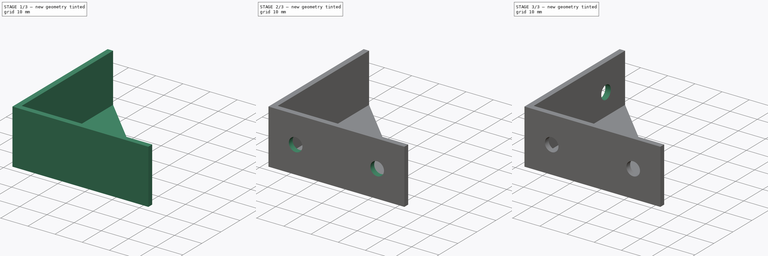
[diagram: build sequence overview — one tinted view per stage of 3, left to right]
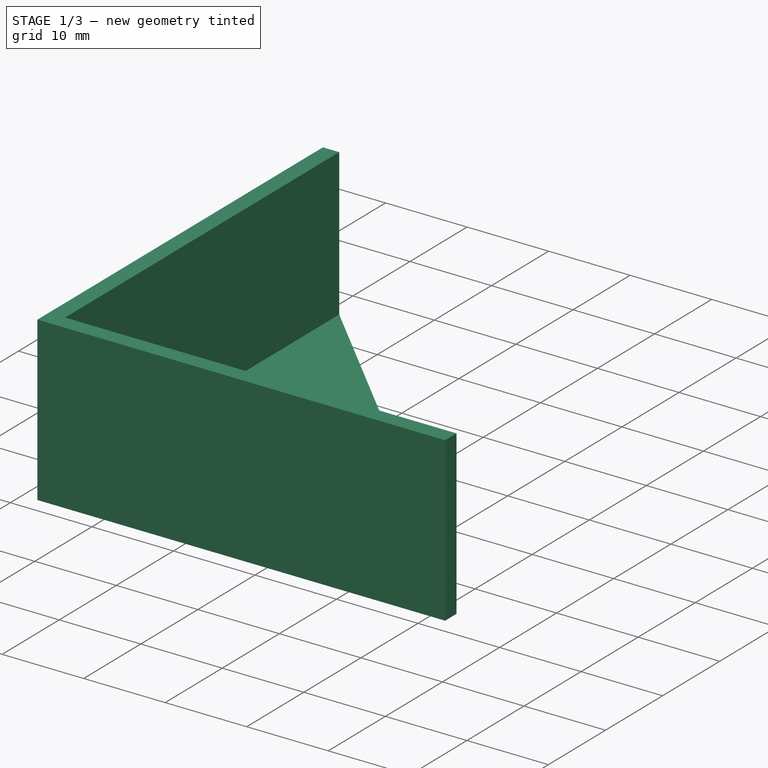
[diagram: stage 1 of 3 — iso view after this stage's code; geometry added in this stage tinted green]
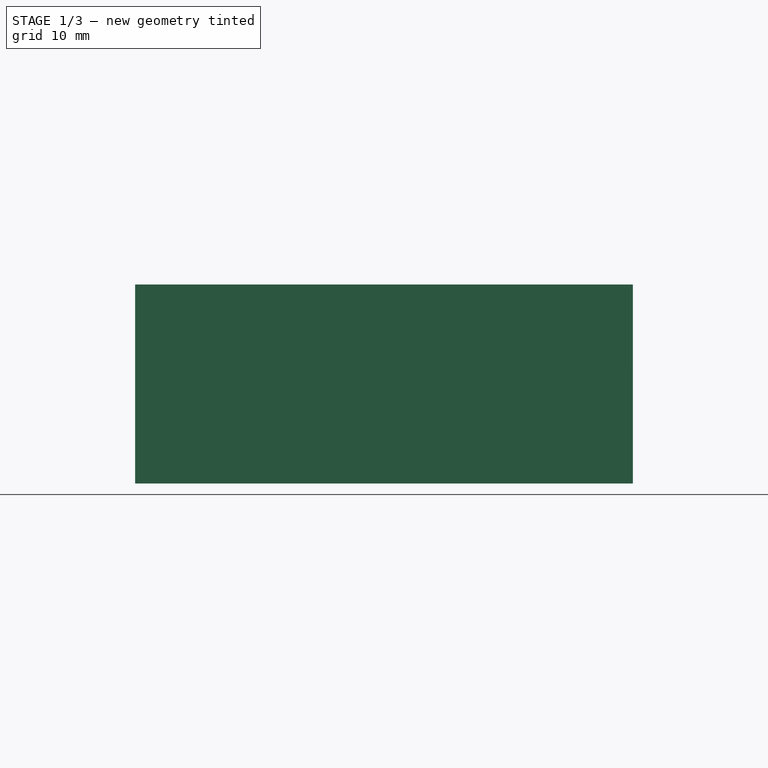
[diagram: stage 1 of 3 — front view after this stage's code; geometry added in this stage tinted green]
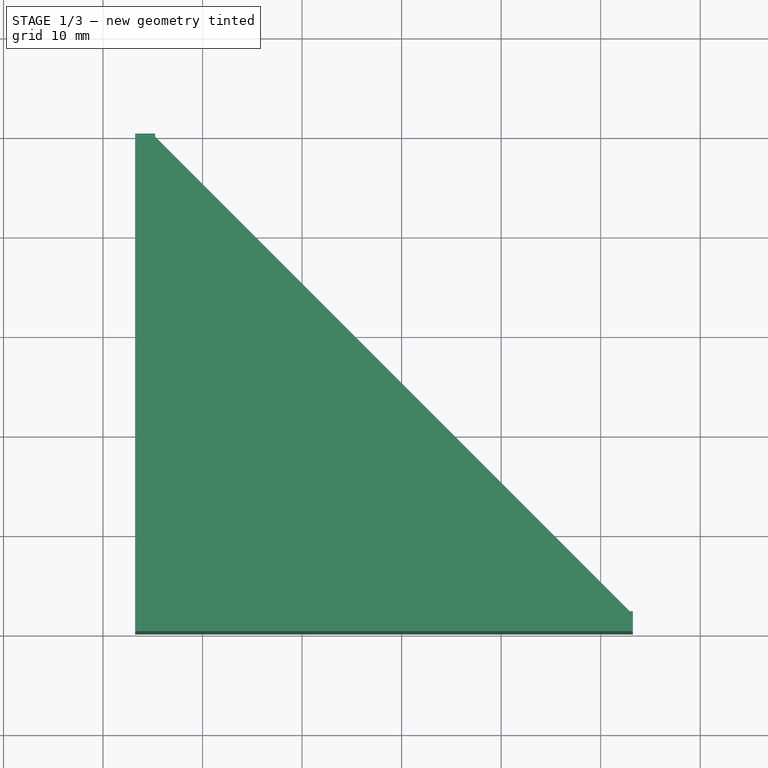
[diagram: stage 1 of 3 — top view after this stage's code; geometry added in this stage tinted green]
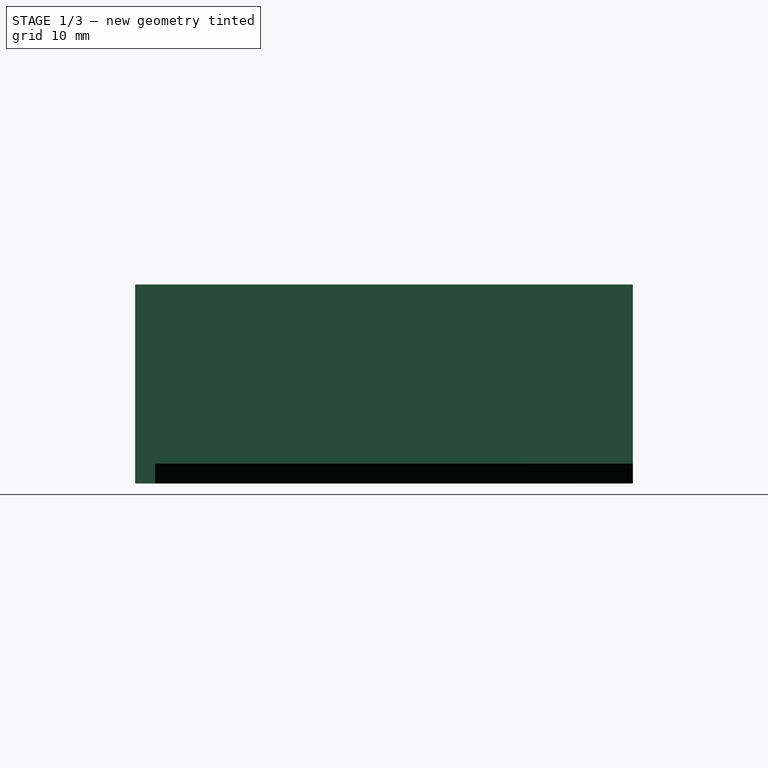
[diagram: stage 1 of 3 — right view after this stage's code; geometry added in this stage tinted green]
FCSTD DOCUMENT  (FreeCAD 0.16R6704 (Git))
Label: squadretta50x50
License: All rights reserved
LicenseURL: http://it.wikipedia.org/wiki/<copyright redacted>
objects: Sketcher::SketchObject×4, PartDesign::Pocket×3, PartDesign::Pad×1, PartDesign::PolarPattern×1
note: 13 computed .brp shape members not serialized (recipe doc carries the construction recipe); baked Part::Feature solids carry a one-line shape summary decoded from their .brp

FEATURE [Sketcher::SketchObject] Sketch
  Placement = pos=(3.22991,0.14043,0) rot=(0,0,1;0rad)
  sketch-geometry (5):
    g0: LineSegment StartX=0 StartY=0 StartZ=0 EndX=50 EndY=0 EndZ=0
    g1: LineSegment StartX=50 StartY=0 StartZ=0 EndX=50 EndY=2 EndZ=0
    g2: LineSegment StartX=50 StartY=2 StartZ=0 EndX=2 EndY=50 EndZ=0
    g3: LineSegment StartX=2 StartY=50 StartZ=0 EndX=0 EndY=50 EndZ=0
    g4: LineSegment StartX=0 StartY=50 StartZ=0 EndX=0 EndY=0 EndZ=0
  constraints (14):
    c: Coincident(g-1,g0)
    c: Horizontal(g0)
    c: Coincident(g0,g1)
    c: Vertical(g1)
    c: Coincident(g1,g2)
    c: Coincident(g2,g3)
    c: Horizontal(g3)
    c: Coincident(g3,g4)
    c: Coincident(g4,g0)
    c: Vertical(g4)
    c: Equal(g0,g4)
    c: DistanceX(g0,g0) = 50
    c: Equal(g1,g3)
    c: DistanceX(g3,g3) = 2
FEATURE [PartDesign::Pad] Pad
  Length = 20
  Length2 = 100
  Placement = pos=(3.22991,0.14043,0) rot=(0,0,1;0rad)
  Sketch = -> Sketch
  Type = 0
FEATURE [Sketcher::SketchObject] Sketch001
  ExternalGeometry = -> [Pad]
  Placement = pos=(3.22991,0.14043,20) rot=(0,0,1;0rad)
  Support = -> Pad [Face7]
  sketch-geometry (3):
    g0: LineSegment StartX=2 StartY=50 StartZ=0 EndX=2 EndY=2 EndZ=0
    g1: LineSegment StartX=2 StartY=2 StartZ=0 EndX=50 EndY=2 EndZ=0
    g2: LineSegment StartX=50 StartY=2 StartZ=0 EndX=2 EndY=50 EndZ=0
  constraints (7):
    c: Coincident(g-3,g0)
    c: Vertical(g0)
    c: Coincident(g0,g1)
    c: Coincident(g1,g-3)
    c: Coincident(g1,g2)
    c: Coincident(g2,g0)
    c: Horizontal(g1)
FEATURE [PartDesign::Pocket] Pocket
  Length = 18
  Placement = pos=(3.22991,0.14043,0) rot=(0,0,1;0rad)
  Sketch = -> Sketch001
  Type = 0
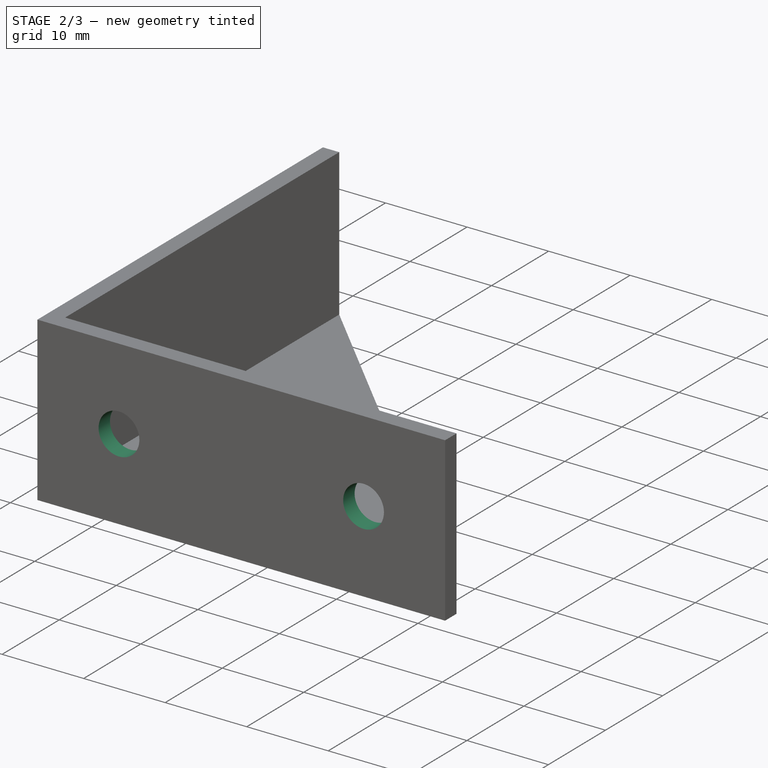
[diagram: stage 2 of 3 — iso view after this stage's code; geometry added in this stage tinted green]
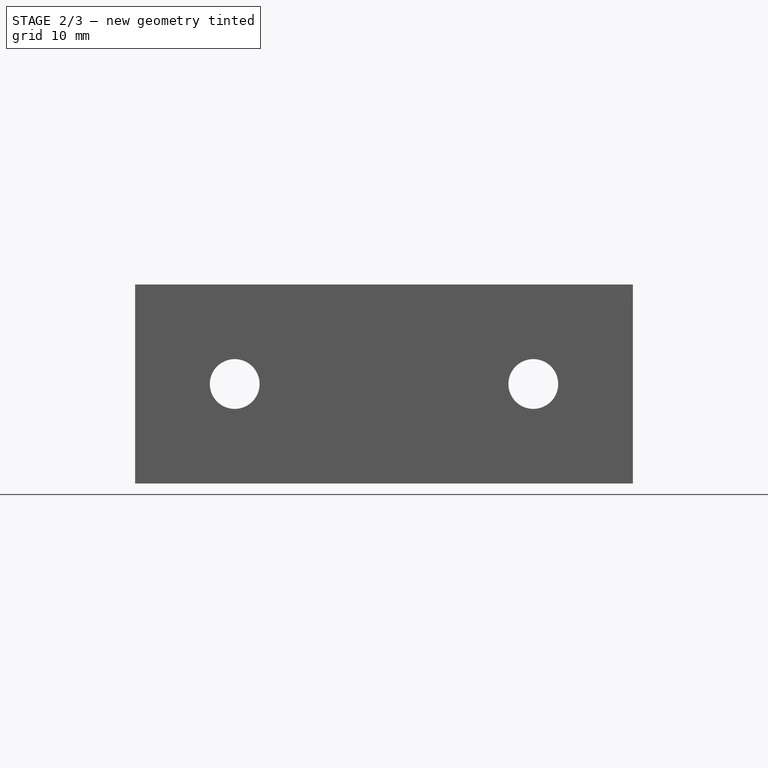
[diagram: stage 2 of 3 — front view after this stage's code; geometry added in this stage tinted green]
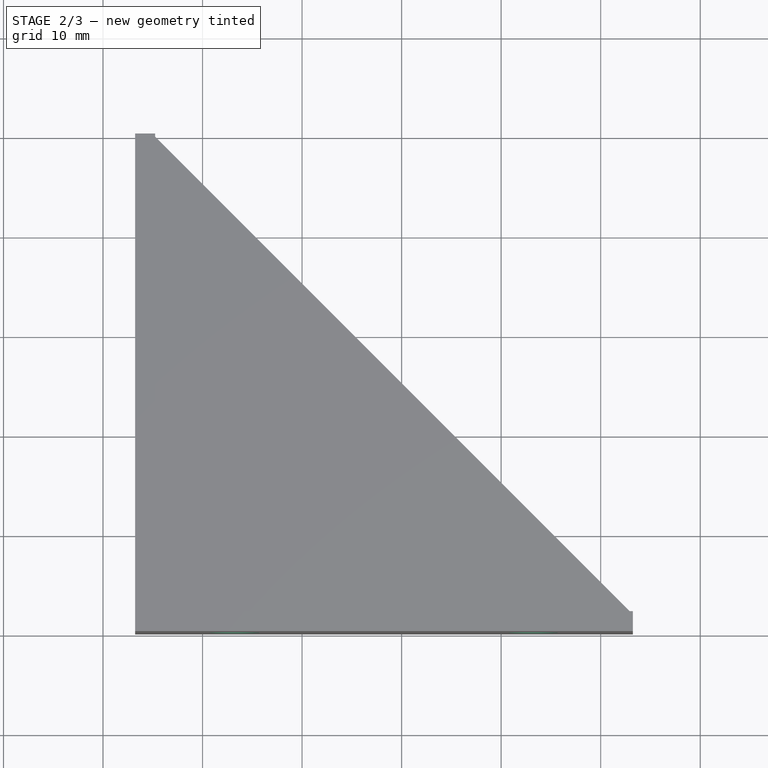
[diagram: stage 2 of 3 — top view after this stage's code; geometry added in this stage tinted green]
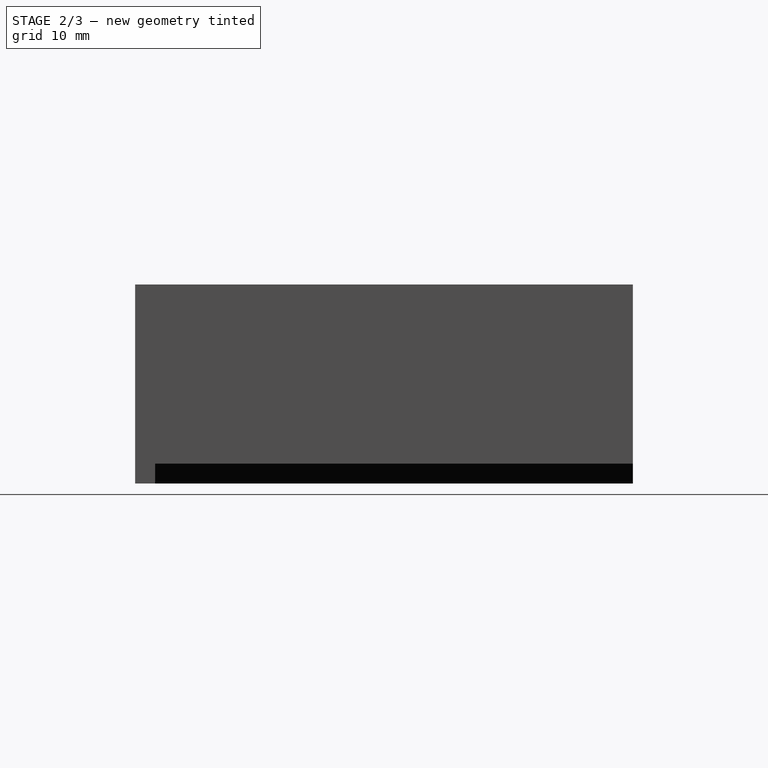
[diagram: stage 2 of 3 — right view after this stage's code; geometry added in this stage tinted green]
FEATURE [Sketcher::SketchObject] Sketch002
  ExternalGeometry = -> [Pocket]
  Placement = pos=(3.22991,0.14043,0) rot=(1,0,0;1.5708rad)
  Support = -> Pocket [Face1]
  sketch-geometry (3):
    g0: Circle CenterX=10 CenterY=10 CenterZ=0 NormalX=0 NormalY=0 NormalZ=1 Radius=2.5
    g1: Circle CenterX=40 CenterY=10 CenterZ=0 NormalX=0 NormalY=0 NormalZ=1 Radius=2.5
    g2: LineSegment [constr] StartX=0 StartY=10 StartZ=0 EndX=55 EndY=10 EndZ=0
  constraints (10):
    c: Radius(g0) = 2.5
    c: Equal(g0,g1)
    c: PointOnObject(g2,g-2)
    c: Horizontal(g2)
    c: DistanceX(g2) = 55
    c: PointOnObject(g0,g2)
    c: PointOnObject(g1,g2)
    c: Symmetric(g-1,g-3,g2)
    c: DistanceX(g0) = 10
    c: DistanceX(g0,g1) = 30
FEATURE [PartDesign::Pocket] Pocket001
  Length = 7
  Midplane = true
  Placement = pos=(3.22991,0.14043,0) rot=(0,0,1;0rad)
  Sketch = -> Sketch002
  Type = 0
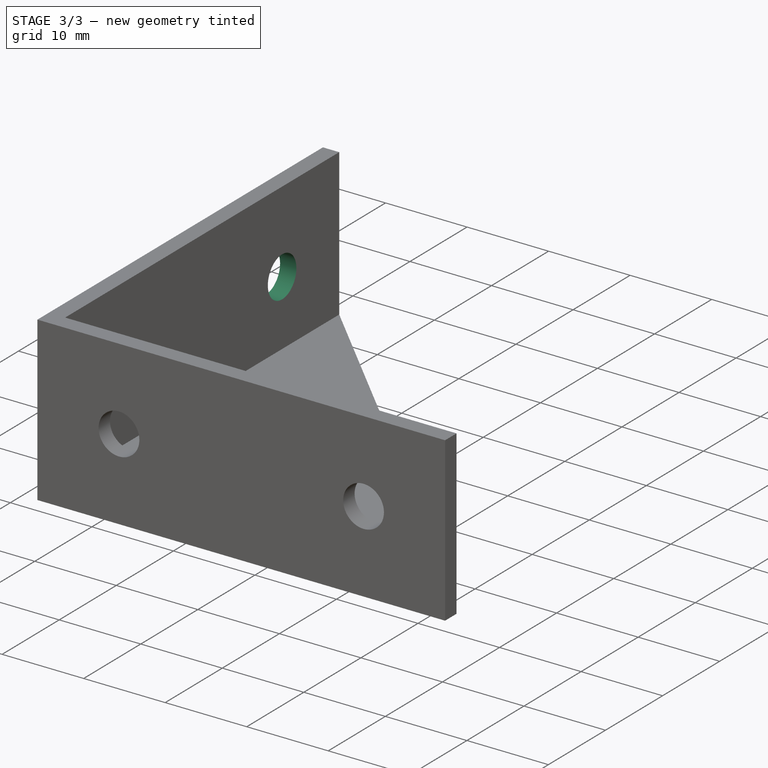
[diagram: stage 3 of 3 — iso view after this stage's code; geometry added in this stage tinted green]
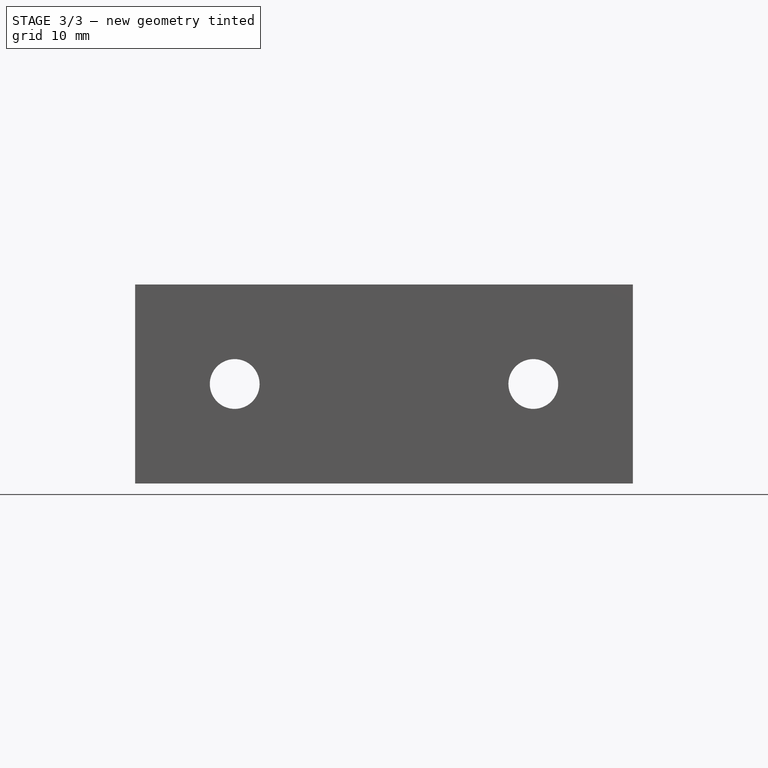
[diagram: stage 3 of 3 — front view after this stage's code; geometry added in this stage tinted green]
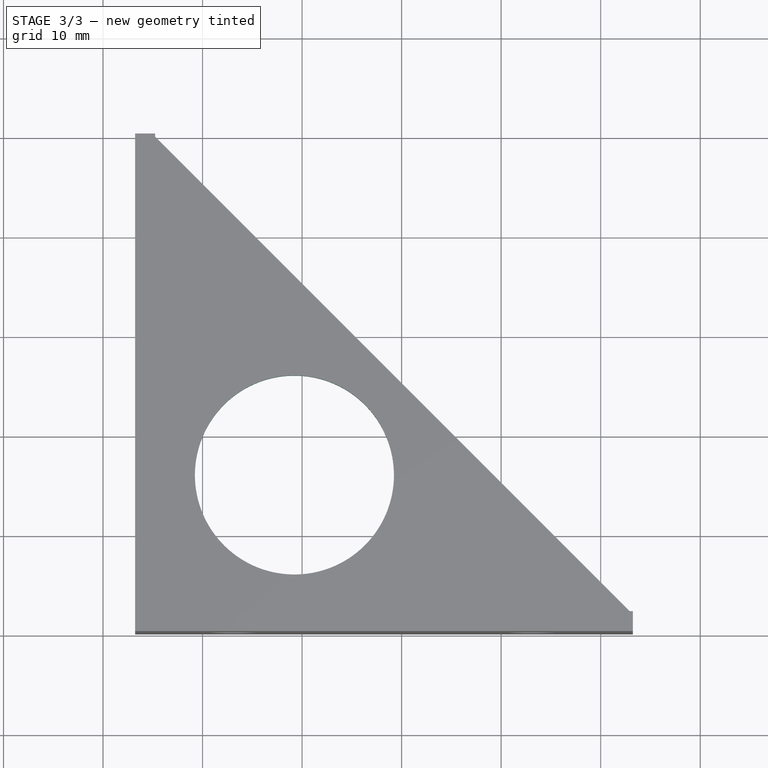
[diagram: stage 3 of 3 — top view after this stage's code; geometry added in this stage tinted green]
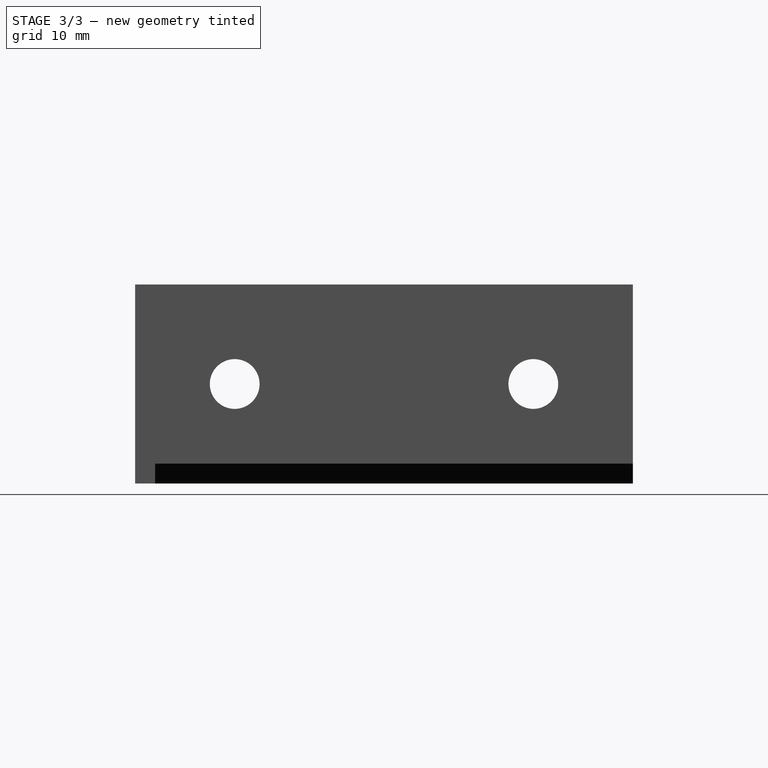
[diagram: stage 3 of 3 — right view after this stage's code; geometry added in this stage tinted green]
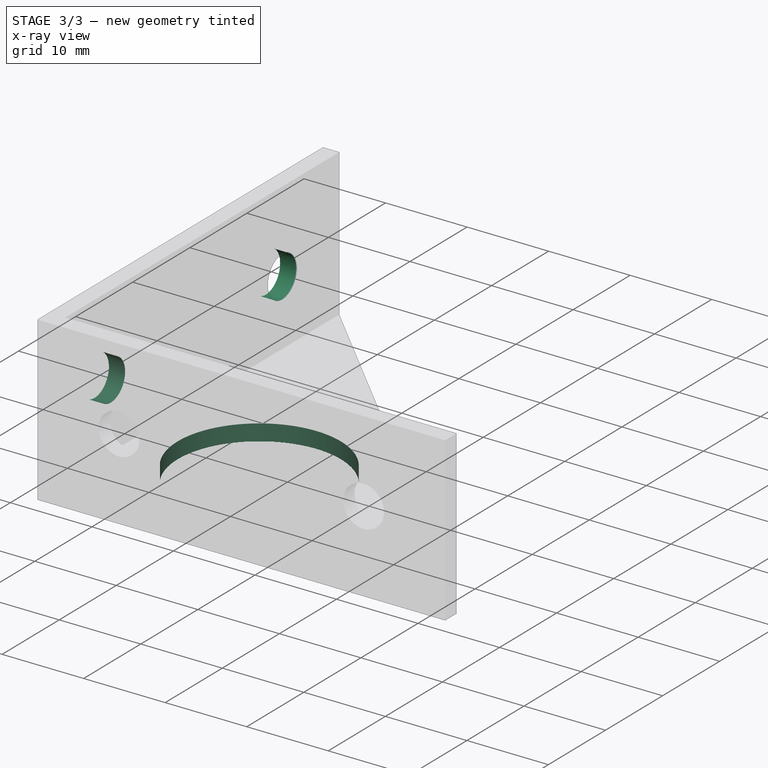
[diagram: stage 3 of 3 — x-ray composite at the iso view; earlier geometry ghosted, this stage's added geometry solid]
FEATURE [PartDesign::PolarPattern] PolarPattern
  Angle = 90
  Axis = -> Pocket001 [Edge1]
  Occurrences = 2
  Originals = -> [Pocket001]
  Placement = pos=(3.22991,0.14043,0) rot=(0,0,1;0rad)
FEATURE [Sketcher::SketchObject] Sketch003
  Placement = pos=(3.22991,0.14043,2) rot=(0,0,1;0rad)
  Support = -> PolarPattern [Face14]
  sketch-geometry (1):
    g0: Circle CenterX=16 CenterY=16 CenterZ=0 NormalX=0 NormalY=0 NormalZ=1 Radius=10
  constraints (3):
    c: Radius(g0) = 10
    c: DistanceX(g0) = 16
    c: DistanceY(g0) = 16
FEATURE [PartDesign::Pocket] Pocket002
  Length = 5
  Placement = pos=(3.22991,0.14043,0) rot=(0,0,1;0rad)
  Sketch = -> Sketch003
  Type = 0
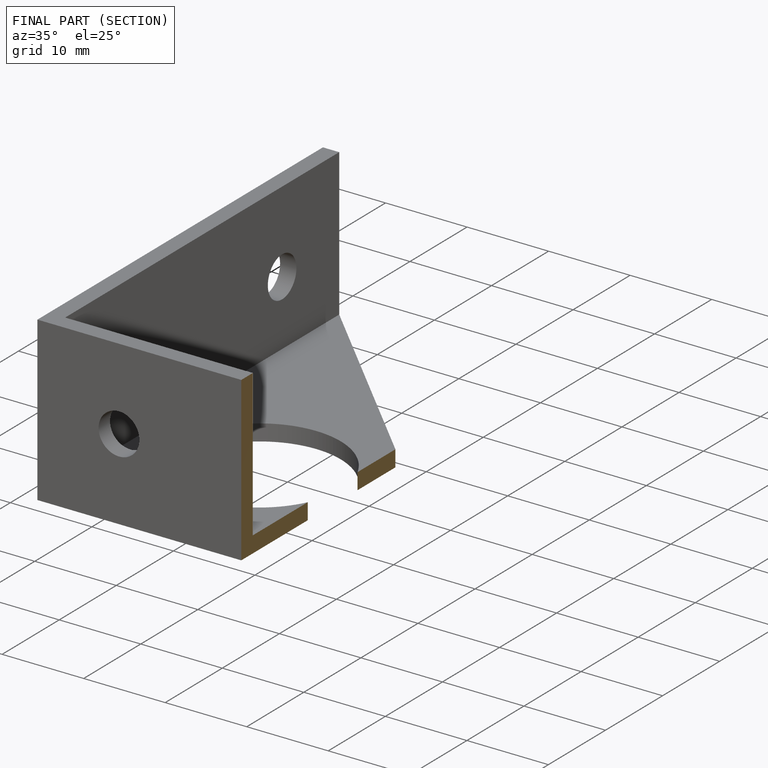
[diagram: finished part — half-section view (interior)]
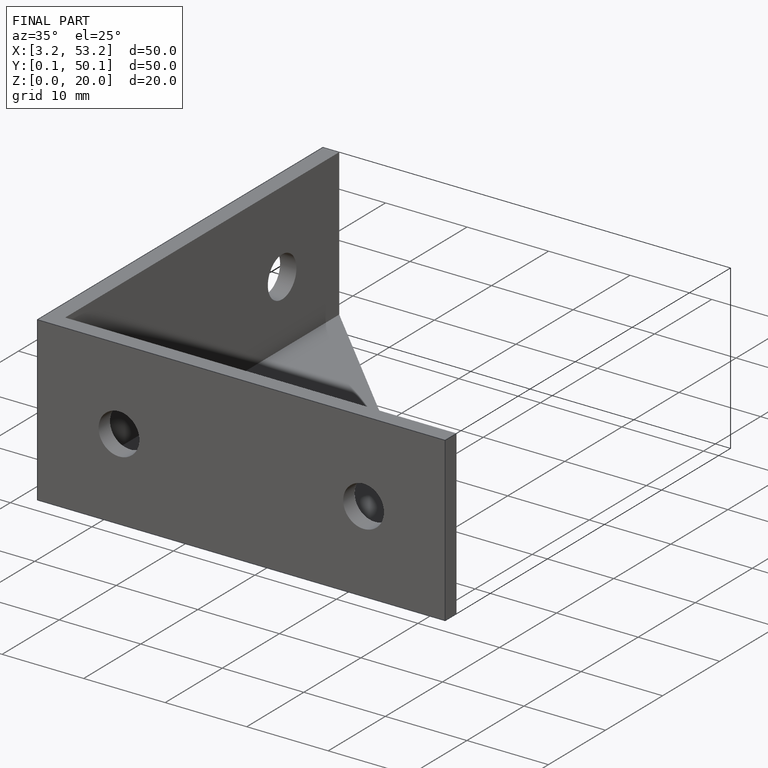
[diagram: finished part — iso view with bounding-box wireframe]
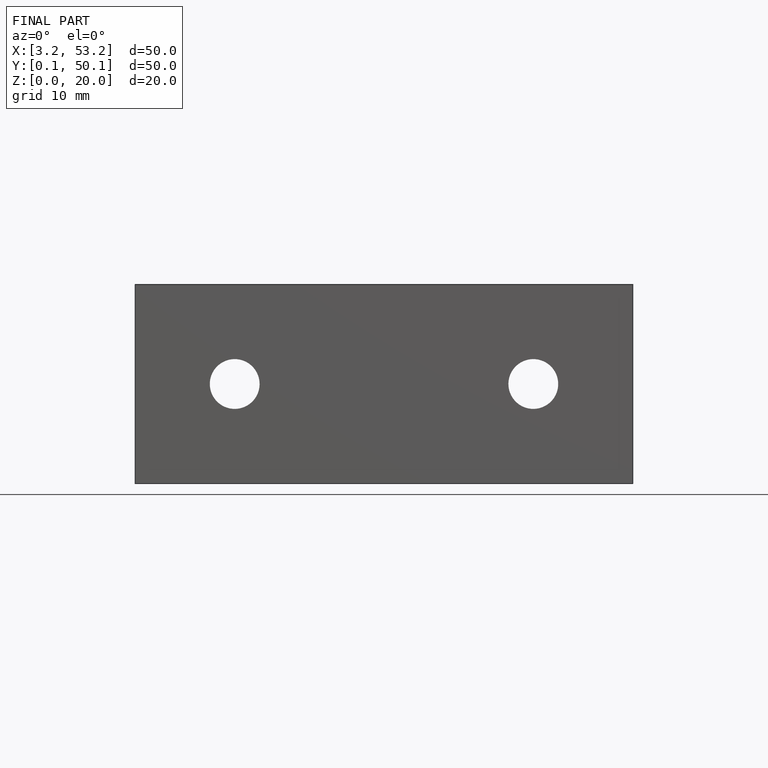
[diagram: finished part — front view with bounding-box wireframe]
